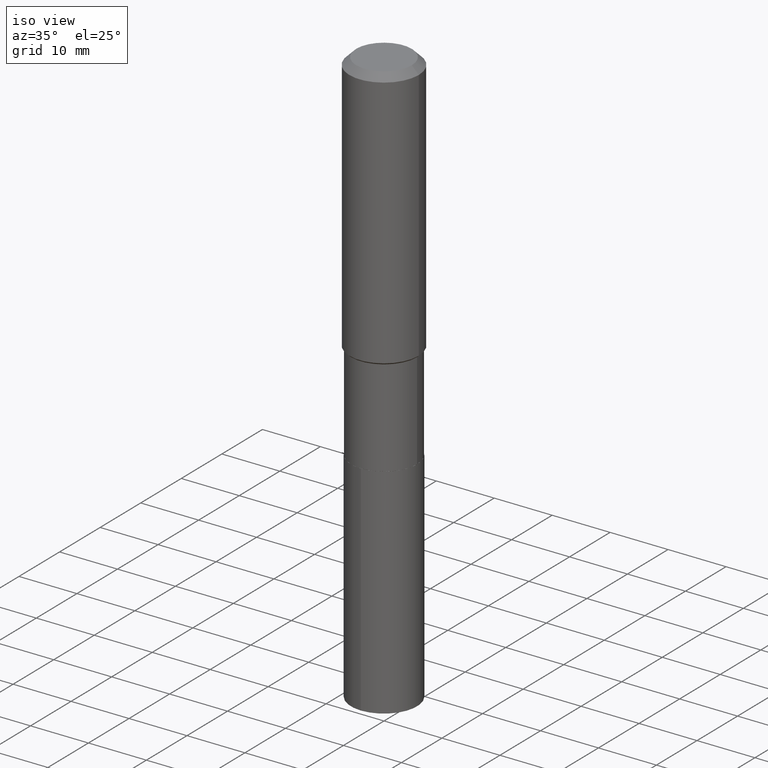
[diagram: clean part render]
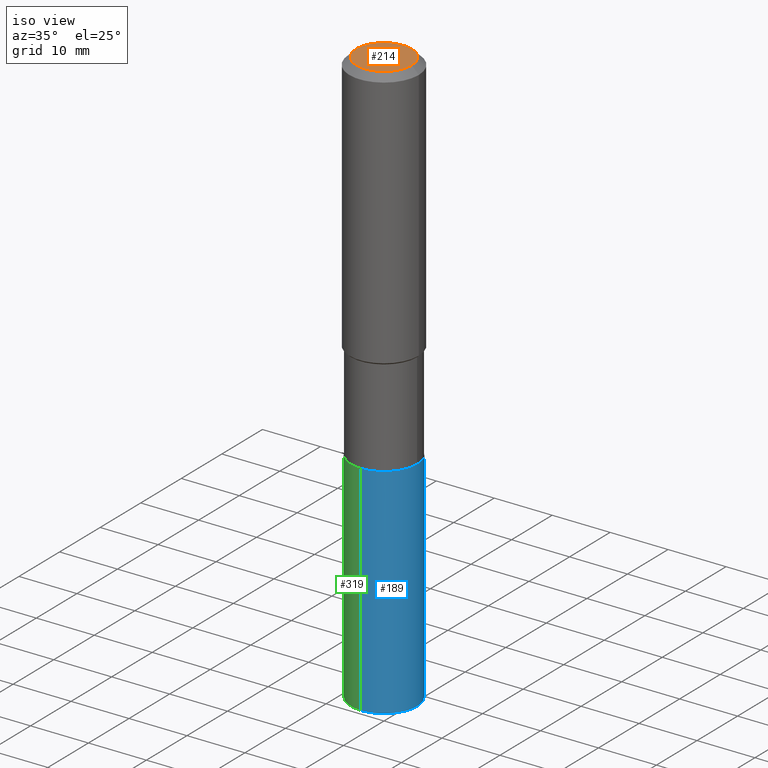
[diagram: same view with three faces highlighted in distinct colors, each labeled with its STEP entity id]
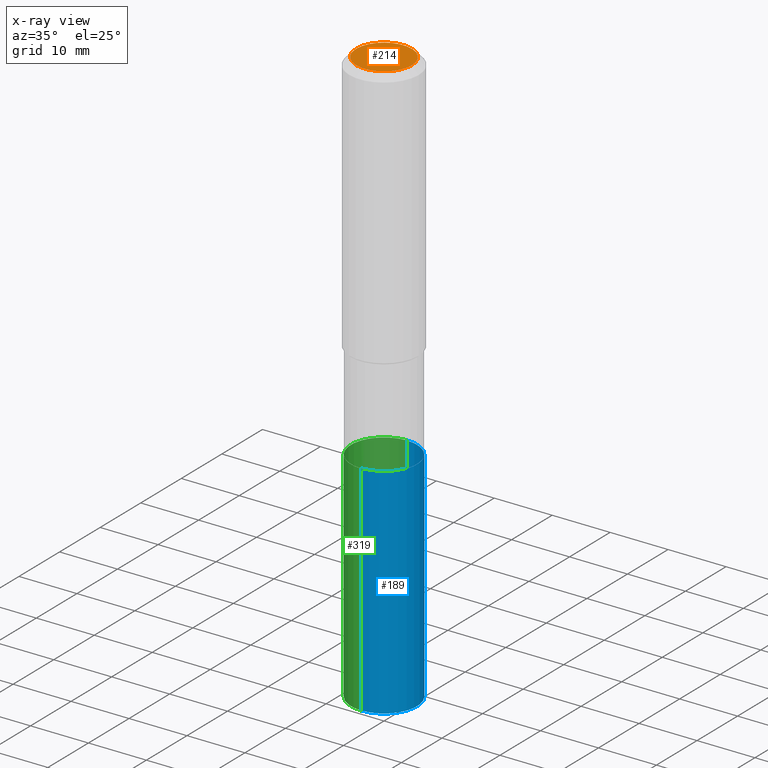
[diagram: x-ray of the same camera — body ghosted, the three highlighted faces saturated]
A machine part, iso view with three faces highlighted in distinct colors.
The next image is the same camera in x-ray (body ghosted, the three faces saturated) — at least one of them is partly hidden behind the body in this view.
Their STEP definitions:

[orange] entity #214 — the highlighted planar face has unit normal (0, -0, -1).
#9 = AXIS2_PLACEMENT_3D ( 'NONE', #124, #117, #159 ) ;
#87 = FACE_OUTER_BOUND ( 'NONE', #472, .T. ) ;
#117 = DIRECTION ( 'NONE',  ( -2.445468806185136597E-29, 3.491481338843145583E-15, 1.000000000000000000 ) ) ;
#124 = CARTESIAN_POINT ( 'NONE',  ( -9.427742298522546243E-47, 1.346031739168365344E-32, 3.855188123715862256E-18 ) ) ;
#127 = AXIS2_PLACEMENT_3D ( 'NONE', #193, #428, #307 ) ;
#150 = DIRECTION ( 'NONE',  ( -2.445468806185136597E-29, 3.491481338843145583E-15, 1.000000000000000000 ) ) ;
#153 = AXIS2_PLACEMENT_3D ( 'NONE', #298, #150, #300 ) ;
#159 = DIRECTION ( 'NONE',  ( 1.000000000000000000, -6.982962677686266711E-15, 4.876185090822587894E-29 ) ) ;
#193 = CARTESIAN_POINT ( 'NONE',  ( -4.713871149261273121E-47, 6.730158695841826722E-33, 1.927594061857931128E-18 ) ) ;
#201 = EDGE_CURVE ( 'NONE', #437, #239, #416, .T. ) ;
#214 = ADVANCED_FACE ( 'NONE', ( #87 ), #424, .F. ) ;
#239 = VERTEX_POINT ( 'NONE', #311 ) ;
#255 = CARTESIAN_POINT ( 'NONE',  ( -0.1889600000000000168, 1.401969416799070942E-15, 3.855188123706346622E-18 ) ) ;
#298 = CARTESIAN_POINT ( 'NONE',  ( -9.427742298522546243E-47, 1.346031739168365344E-32, 3.855188123715862256E-18 ) ) ;
#300 = DIRECTION ( 'NONE',  ( 1.000000000000000000, -6.982962677686266711E-15, 4.876185090822587894E-29 ) ) ;
#307 = DIRECTION ( 'NONE',  ( -1.000000000000000000, 6.982962677686265922E-15, -4.876176775795935793E-29 ) ) ;
#311 = CARTESIAN_POINT ( 'NONE',  ( 0.1889600000000000168, -1.540873453589747738E-15, 3.855188123725863225E-18 ) ) ;
#368 = ORIENTED_EDGE ( 'NONE', *, *, #201, .T. ) ;
#416 = CIRCLE ( 'NONE', #9, 0.1889600000000000168 ) ;
#424 = PLANE ( 'NONE',  #127 ) ;
#428 = DIRECTION ( 'NONE',  ( 2.438088387897960049E-29, -3.491481338843145188E-15, -1.000000000000000000 ) ) ;
#435 = ORIENTED_EDGE ( 'NONE', *, *, #487, .T. ) ;
#437 = VERTEX_POINT ( 'NONE', #255 ) ;
#467 = CIRCLE ( 'NONE', #153, 0.1889600000000000168 ) ;
#472 = EDGE_LOOP ( 'NONE', ( #368, #435 ) ) ;
#487 = EDGE_CURVE ( 'NONE', #239, #437, #467, .T. ) ;

[blue] entity #189 — the highlighted cylindrical surface (partial cylindrical patch) has radius 5.6998 mm, axis along (-0, 0, 1).
#10 = LINE ( 'NONE', #351, #347 ) ;
#14 = AXIS2_PLACEMENT_3D ( 'NONE', #106, #146, #111 ) ;
#21 = DIRECTION ( 'NONE',  ( -6.982962677686265133E-15, -1.000000000000000000, 3.652203200085913145E-15 ) ) ;
#24 = ORIENTED_EDGE ( 'NONE', *, *, #446, .T. ) ;
#45 = CARTESIAN_POINT ( 'NONE',  ( 1.594457899045760384E-15, 0.2243999999999862494, -3.927306489272008427 ) ) ;
#47 = AXIS2_PLACEMENT_3D ( 'NONE', #355, #200, #21 ) ;
#49 = VERTEX_POINT ( 'NONE', #413 ) ;
#54 = FACE_OUTER_BOUND ( 'NONE', #172, .T. ) ;
#66 = CARTESIAN_POINT ( 'NONE',  ( -1.566976824872701766E-15, -0.2244000000000136719, -3.927306489272007539 ) ) ;
#71 = ORIENTED_EDGE ( 'NONE', *, *, #232, .F. ) ;
#78 = DIRECTION ( 'NONE',  ( -6.982962677686265133E-15, -1.000000000000000000, 2.434802133390608632E-15 ) ) ;
#88 = CIRCLE ( 'NONE', #365, 0.2244000000000000161 ) ;
#90 = DIRECTION ( 'NONE',  ( -2.445399602320894689E-29, 3.491580442715579660E-15, 1.000000000000000000 ) ) ;
#100 = EDGE_CURVE ( 'NONE', #286, #49, #474, .T. ) ;
#106 = CARTESIAN_POINT ( 'NONE',  ( 5.969144809017299038E-29, -8.522356799982232966E-15, -2.440900000000000070 ) ) ;
#111 = DIRECTION ( 'NONE',  ( -6.982962677686265133E-15, -1.000000000000000000, 3.652203200085913145E-15 ) ) ;
#146 = DIRECTION ( 'NONE',  ( -2.445399602320894408E-29, 3.491580442715579660E-15, 1.000000000000000000 ) ) ;
#156 = DIRECTION ( 'NONE',  ( -2.445399602320894689E-29, 3.491580442715579660E-15, 1.000000000000000000 ) ) ;
#162 = CYLINDRICAL_SURFACE ( 'NONE', #47, 0.2244000000000000161 ) ;
#168 = ORIENTED_EDGE ( 'NONE', *, *, #248, .T. ) ;
#172 = EDGE_LOOP ( 'NONE', ( #24, #168, #208, #71 ) ) ;
#189 = ADVANCED_FACE ( 'NONE', ( #54 ), #162, .T. ) ;
#200 = DIRECTION ( 'NONE',  ( -2.445399602320894408E-29, 3.491580442715579660E-15, 1.000000000000000000 ) ) ;
#208 = ORIENTED_EDGE ( 'NONE', *, *, #100, .F. ) ;
#212 = VERTEX_POINT ( 'NONE', #45 ) ;
#232 = EDGE_CURVE ( 'NONE', #342, #286, #469, .T. ) ;
#248 = EDGE_CURVE ( 'NONE', #212, #49, #10, .T. ) ;
#286 = VERTEX_POINT ( 'NONE', #372 ) ;
#342 = VERTEX_POINT ( 'NONE', #66 ) ;
#347 = VECTOR ( 'NONE', #156, 39.37007874015748143 ) ;
#351 = CARTESIAN_POINT ( 'NONE',  ( 1.594457899045724293E-15, 0.2243999999999914674, -2.440900000000000514 ) ) ;
#355 = CARTESIAN_POINT ( 'NONE',  ( 5.969144809017299038E-29, -8.522356799982232966E-15, -2.440900000000000070 ) ) ;
#365 = AXIS2_PLACEMENT_3D ( 'NONE', #436, #410, #78 ) ;
#372 = CARTESIAN_POINT ( 'NONE',  ( -1.566976824872738448E-15, -0.2244000000000085371, -2.440899999999999181 ) ) ;
#410 = DIRECTION ( 'NONE',  ( -2.445399602320894408E-29, 3.491580442715579660E-15, 1.000000000000000000 ) ) ;
#413 = CARTESIAN_POINT ( 'NONE',  ( 1.594457899045760975E-15, 0.2243999999999914674, -2.440900000000000514 ) ) ;
#430 = CARTESIAN_POINT ( 'NONE',  ( -1.566976824872738448E-15, -0.2244000000000085371, -2.440899999999999181 ) ) ;
#436 = CARTESIAN_POINT ( 'NONE',  ( 9.604002646770265742E-29, -1.371226462784990284E-14, -3.927306489272007983 ) ) ;
#446 = EDGE_CURVE ( 'NONE', #342, #212, #88, .T. ) ;
#454 = VECTOR ( 'NONE', #90, 39.37007874015748143 ) ;
#469 = LINE ( 'NONE', #430, #454 ) ;
#474 = CIRCLE ( 'NONE', #14, 0.2244000000000000161 ) ;

[green] entity #319 — the highlighted cylindrical surface (partial cylindrical patch) has radius 5.6998 mm, axis along (-0, 0, 1).
#10 = LINE ( 'NONE', #351, #347 ) ;
#45 = CARTESIAN_POINT ( 'NONE',  ( 1.594457899045760384E-15, 0.2243999999999862494, -3.927306489272008427 ) ) ;
#49 = VERTEX_POINT ( 'NONE', #413 ) ;
#53 = AXIS2_PLACEMENT_3D ( 'NONE', #406, #249, #134 ) ;
#60 = ORIENTED_EDGE ( 'NONE', *, *, #289, .F. ) ;
#66 = CARTESIAN_POINT ( 'NONE',  ( -1.566976824872701766E-15, -0.2244000000000136719, -3.927306489272007539 ) ) ;
#90 = DIRECTION ( 'NONE',  ( -2.445399602320894689E-29, 3.491580442715579660E-15, 1.000000000000000000 ) ) ;
#93 = DIRECTION ( 'NONE',  ( -2.445399602320894408E-29, 3.491580442715579660E-15, 1.000000000000000000 ) ) ;
#105 = DIRECTION ( 'NONE',  ( -6.982962677686265133E-15, -1.000000000000000000, 3.652203200085913145E-15 ) ) ;
#115 = ORIENTED_EDGE ( 'NONE', *, *, #232, .T. ) ;
#134 = DIRECTION ( 'NONE',  ( -6.982962677686265133E-15, -1.000000000000000000, 3.652203200085913145E-15 ) ) ;
#149 = EDGE_LOOP ( 'NONE', ( #475, #468, #115, #60 ) ) ;
#156 = DIRECTION ( 'NONE',  ( -2.445399602320894689E-29, 3.491580442715579660E-15, 1.000000000000000000 ) ) ;
#186 = CIRCLE ( 'NONE', #291, 0.2244000000000000161 ) ;
#199 = DIRECTION ( 'NONE',  ( -6.982962677686265133E-15, -1.000000000000000000, 2.434802133390608632E-15 ) ) ;
#212 = VERTEX_POINT ( 'NONE', #45 ) ;
#232 = EDGE_CURVE ( 'NONE', #342, #286, #469, .T. ) ;
#237 = EDGE_CURVE ( 'NONE', #212, #342, #309, .T. ) ;
#244 = AXIS2_PLACEMENT_3D ( 'NONE', #348, #93, #199 ) ;
#248 = EDGE_CURVE ( 'NONE', #212, #49, #10, .T. ) ;
#249 = DIRECTION ( 'NONE',  ( -2.445399602320894408E-29, 3.491580442715579660E-15, 1.000000000000000000 ) ) ;
#252 = FACE_OUTER_BOUND ( 'NONE', #149, .T. ) ;
#283 = CARTESIAN_POINT ( 'NONE',  ( 5.969144809017299038E-29, -8.522356799982232966E-15, -2.440900000000000070 ) ) ;
#286 = VERTEX_POINT ( 'NONE', #372 ) ;
#289 = EDGE_CURVE ( 'NONE', #49, #286, #186, .T. ) ;
#291 = AXIS2_PLACEMENT_3D ( 'NONE', #283, #295, #105 ) ;
#295 = DIRECTION ( 'NONE',  ( -2.445399602320894408E-29, 3.491580442715579660E-15, 1.000000000000000000 ) ) ;
#309 = CIRCLE ( 'NONE', #244, 0.2244000000000000161 ) ;
#319 = ADVANCED_FACE ( 'NONE', ( #252 ), #335, .T. ) ;
#335 = CYLINDRICAL_SURFACE ( 'NONE', #53, 0.2244000000000000161 ) ;
#342 = VERTEX_POINT ( 'NONE', #66 ) ;
#347 = VECTOR ( 'NONE', #156, 39.37007874015748143 ) ;
#348 = CARTESIAN_POINT ( 'NONE',  ( 9.604002646770265742E-29, -1.371226462784990284E-14, -3.927306489272007983 ) ) ;
#351 = CARTESIAN_POINT ( 'NONE',  ( 1.594457899045724293E-15, 0.2243999999999914674, -2.440900000000000514 ) ) ;
#372 = CARTESIAN_POINT ( 'NONE',  ( -1.566976824872738448E-15, -0.2244000000000085371, -2.440899999999999181 ) ) ;
#406 = CARTESIAN_POINT ( 'NONE',  ( 5.969144809017299038E-29, -8.522356799982232966E-15, -2.440900000000000070 ) ) ;
#413 = CARTESIAN_POINT ( 'NONE',  ( 1.594457899045760975E-15, 0.2243999999999914674, -2.440900000000000514 ) ) ;
#430 = CARTESIAN_POINT ( 'NONE',  ( -1.566976824872738448E-15, -0.2244000000000085371, -2.440899999999999181 ) ) ;
#454 = VECTOR ( 'NONE', #90, 39.37007874015748143 ) ;
#468 = ORIENTED_EDGE ( 'NONE', *, *, #237, .T. ) ;
#469 = LINE ( 'NONE', #430, #454 ) ;
#475 = ORIENTED_EDGE ( 'NONE', *, *, #248, .F. ) ;